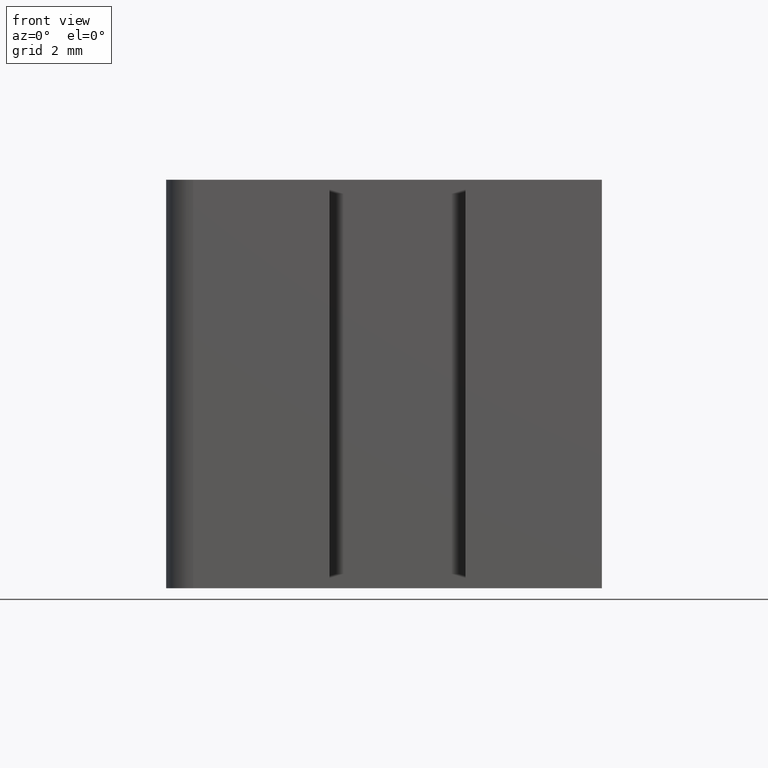
[diagram: clean part render]
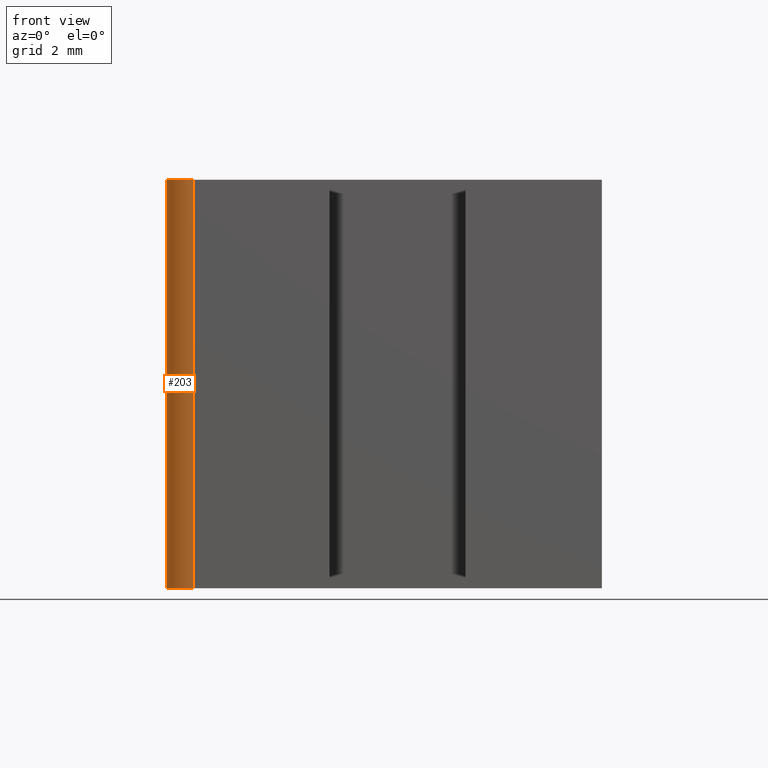
[diagram: same view with one face highlighted and labeled with its STEP entity id]
A machine part, front view. The second image highlights one B-rep face of the part: STEP entity #203.
In plain terms, the highlighted cylindrical surface (edge-blend (fillet) strip) has radius 1 mm, axis along (0, 0, 1).
Its self-contained STEP definition (entity closure, byte-faithful):
#16=CYLINDRICAL_SURFACE('',#239,1.);
#23=FACE_OUTER_BOUND('',#34,.T.);
#34=EDGE_LOOP('',(#160,#161,#162,#163));
#40=CIRCLE('',#233,1.);
#42=CIRCLE('',#240,1.);
#59=LINE('',#339,#82);
#60=LINE('',#343,#83);
#82=VECTOR('',#278,10.);
#83=VECTOR('',#283,10.);
#96=VERTEX_POINT('',#315);
#97=VERTEX_POINT('',#317);
#103=VERTEX_POINT('',#337);
#104=VERTEX_POINT('',#341);
#114=EDGE_CURVE('',#97,#96,#40,.T.);
#125=EDGE_CURVE('',#103,#96,#59,.T.);
#126=EDGE_CURVE('',#103,#104,#42,.T.);
#127=EDGE_CURVE('',#104,#97,#60,.T.);
#160=ORIENTED_EDGE('',*,*,#126,.T.);
#161=ORIENTED_EDGE('',*,*,#127,.T.);
#162=ORIENTED_EDGE('',*,*,#114,.T.);
#163=ORIENTED_EDGE('',*,*,#125,.F.);
#203=ADVANCED_FACE('',(#23),#16,.T.);
#233=AXIS2_PLACEMENT_3D('',#318,#257,#258);
#239=AXIS2_PLACEMENT_3D('',#340,#279,#280);
#240=AXIS2_PLACEMENT_3D('',#342,#281,#282);
#257=DIRECTION('center_axis',(0.,0.,1.));
#258=DIRECTION('ref_axis',(0.694135570584232,-0.719844295420685,0.));
#278=DIRECTION('',(0.,0.,-1.));
#279=DIRECTION('center_axis',(0.,0.,1.));
#280=DIRECTION('ref_axis',(0.694135570584232,-0.719844295420685,0.));
#281=DIRECTION('center_axis',(0.,0.,-1.));
#282=DIRECTION('ref_axis',(0.694135570584232,-0.719844295420685,0.));
#283=DIRECTION('',(0.,0.,-1.));
#315=CARTESIAN_POINT('',(-15.,1.66533453693773E-15,-7.5));
#317=CARTESIAN_POINT('',(-15.6941355705842,1.71984429542069,-7.5));
#318=CARTESIAN_POINT('Origin',(-15.,1.,-7.5));
#337=CARTESIAN_POINT('',(-15.,1.66533453693773E-15,7.5));
#339=CARTESIAN_POINT('',(-15.,1.66533453693773E-15,0.));
#340=CARTESIAN_POINT('Origin',(-15.,1.,0.));
#341=CARTESIAN_POINT('',(-15.6941355705842,1.71984429542069,7.5));
#342=CARTESIAN_POINT('Origin',(-15.,1.,7.5));
#343=CARTESIAN_POINT('',(-15.6941355705842,1.71984429542069,0.));